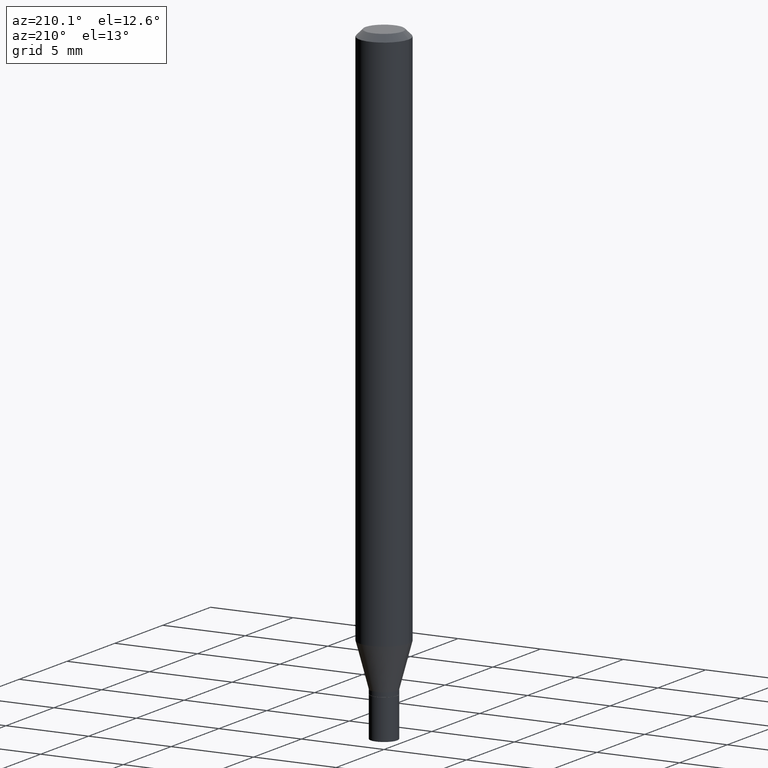
[diagram: clean part render]
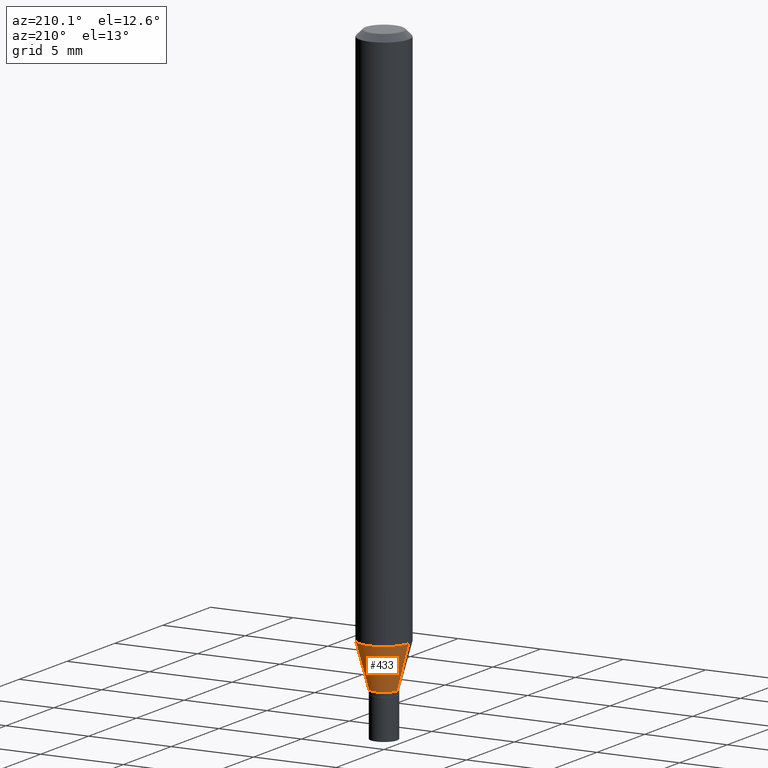
[diagram: same view with one face highlighted and labeled with its STEP entity id]
A machine part, auxiliary view. The second image highlights one B-rep face of the part: STEP entity #433.
In plain terms, the highlighted conical surface has half-angle 15 deg.
Its self-contained STEP definition (entity closure, byte-faithful):
#27 = CARTESIAN_POINT ( 'NONE',  ( -0.05904999999999999832, -4.092053854800706123E-15, -1.292182000251478113 ) ) ;
#30 = DIRECTION ( 'NONE',  ( 0.2588190451025205729, 1.565188264969628081E-15, 0.9659258262890684232 ) ) ;
#32 = DIRECTION ( 'NONE',  ( -2.445468806185136597E-29, 3.491481338843145583E-15, 1.000000000000000000 ) ) ;
#34 = AXIS2_PLACEMENT_3D ( 'NONE', #309, #171, #448 ) ;
#49 = VERTEX_POINT ( 'NONE', #27 ) ;
#55 = ORIENTED_EDGE ( 'NONE', *, *, #81, .F. ) ;
#73 = DIRECTION ( 'NONE',  ( -0.2588190451025205729, 5.211531920934545520E-15, 0.9659258262890684232 ) ) ;
#76 = CARTESIAN_POINT ( 'NONE',  ( -0.03150000000000020145, -4.646795505921755287E-15, -1.395000000000000018 ) ) ;
#81 = EDGE_CURVE ( 'NONE', #351, #200, #300, .T. ) ;
#98 = EDGE_LOOP ( 'NONE', ( #125, #375, #347, #55 ) ) ;
#107 = DIRECTION ( 'NONE',  ( 1.000000000000000000, -6.982962677686272233E-15, 0.000000000000000000 ) ) ;
#117 = CARTESIAN_POINT ( 'NONE',  ( 0.03150000000000020145, -5.090579792033307144E-15, -1.395000000000000018 ) ) ;
#125 = ORIENTED_EDGE ( 'NONE', *, *, #390, .T. ) ;
#140 = CONICAL_SURFACE ( 'NONE', #299, 0.03150000000000020145, 0.2617993877991492413 ) ;
#171 = DIRECTION ( 'NONE',  ( -2.445468806185136597E-29, 3.491481338843145583E-15, 1.000000000000000000 ) ) ;
#200 = VERTEX_POINT ( 'NONE', #265 ) ;
#218 = CIRCLE ( 'NONE', #367, 0.03150000000000020145 ) ;
#257 = CARTESIAN_POINT ( 'NONE',  ( 3.411428984628265351E-29, -4.870616467686188228E-15, -1.395000000000000018 ) ) ;
#263 = EDGE_CURVE ( 'NONE', #340, #49, #325, .T. ) ;
#265 = CARTESIAN_POINT ( 'NONE',  ( 0.05904999999999999832, -4.923973286384418959E-15, -1.292182000251478113 ) ) ;
#274 = DIRECTION ( 'NONE',  ( 1.000000000000000000, -6.982962677686272233E-15, 0.000000000000000000 ) ) ;
#299 = AXIS2_PLACEMENT_3D ( 'NONE', #257, #32, #107 ) ;
#300 = LINE ( 'NONE', #346, #457 ) ;
#304 = DIRECTION ( 'NONE',  ( -2.445468806185136597E-29, 3.491481338843145583E-15, 1.000000000000000000 ) ) ;
#309 = CARTESIAN_POINT ( 'NONE',  ( 3.159990773528904533E-29, -4.511629340267044828E-15, -1.292182000251478113 ) ) ;
#314 = EDGE_CURVE ( 'NONE', #200, #49, #430, .T. ) ;
#325 = LINE ( 'NONE', #76, #395 ) ;
#340 = VERTEX_POINT ( 'NONE', #414 ) ;
#342 = CARTESIAN_POINT ( 'NONE',  ( 3.411428984628265351E-29, -4.870616467686188228E-15, -1.395000000000000018 ) ) ;
#346 = CARTESIAN_POINT ( 'NONE',  ( 0.03150000000000020145, -5.090579792033307144E-15, -1.395000000000000018 ) ) ;
#347 = ORIENTED_EDGE ( 'NONE', *, *, #314, .F. ) ;
#351 = VERTEX_POINT ( 'NONE', #117 ) ;
#367 = AXIS2_PLACEMENT_3D ( 'NONE', #342, #304, #274 ) ;
#375 = ORIENTED_EDGE ( 'NONE', *, *, #263, .T. ) ;
#390 = EDGE_CURVE ( 'NONE', #351, #340, #218, .T. ) ;
#395 = VECTOR ( 'NONE', #73, 39.37007874015748143 ) ;
#414 = CARTESIAN_POINT ( 'NONE',  ( -0.03150000000000020145, -4.369424680361230311E-15, -1.395000000000000018 ) ) ;
#421 = FACE_OUTER_BOUND ( 'NONE', #98, .T. ) ;
#430 = CIRCLE ( 'NONE', #34, 0.05904999999999999832 ) ;
#433 = ADVANCED_FACE ( 'NONE', ( #421 ), #140, .T. ) ;
#448 = DIRECTION ( 'NONE',  ( 1.000000000000000000, -6.982962677686273021E-15, 0.000000000000000000 ) ) ;
#457 = VECTOR ( 'NONE', #30, 39.37007874015748143 ) ;